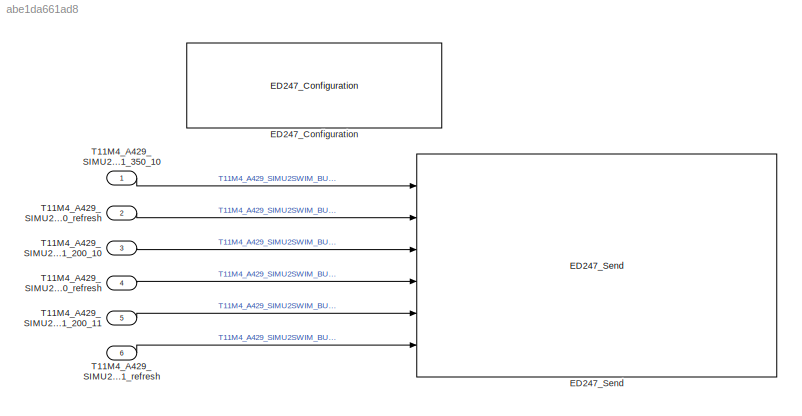
MODEL slx_abe1da661ad8
KIND model
CONFIG AbsTol = auto
CONFIG EnableMultiTasking = off
CONFIG FixedStep = auto
CONFIG MaxStep = auto
CONFIG MinStep = auto
CONFIG PreLoadFcn = ds = Simulink.SimulationData.Dataset();\nds = ds.addElement(timeseries(uint8((1:11)' + (1:4)),       (0:10)', 'Name', 'AnA429SamplingMessage'),   'Name', 'AnA429SamplingMessage');\nds = ds.addElement(timeseries(uint8((250:-1:240)' + (1:4)), (0:10)', 'Name', 'AnA429QueuingMessage'),    'Name', 'AnA429QueuingMessage');
CONFIG RelTol = 1e-3
CONFIG SampleTimeConstraint = Unconstrained
CONFIG Solver = VariableStepAuto
CONFIG SolverName = VariableStepAuto
CONFIG StartTime = 0.0
CONFIG StopTime = 10.0
WORKSPACE source: MAT-file member
WORKSPACE ED247Configuration: struct (value not decoded)
BLOCK [Reference] ED247_Configuration  REF=lib_ed247/ED247_Configuration
  Ports = []
  SourceBlock = lib_ed247/ED247_Configuration
  SourceProductName = Airbus ED247
  SourceType = Configurable block example
BLOCK [Reference] ED247_Send  REF=lib_ed247/ED247_Send
  Ports = [6]
  SourceBlock = lib_ed247/ED247_Send
  SourceProductName = Airbus ED247
  SourceType = ED247 Send
BLOCK [Inport] T11M4_A429_SIMU2SWIM_BUS_1_200_10
  IconDisplay = Port number
  OutDataTypeStr = uint8
  Port = 3
  PortDimensions = 4
  SampleTime = 0.1
BLOCK [Inport] T11M4_A429_SIMU2SWIM_BUS_1_200_10_refresh
  IconDisplay = Port number
  OutDataTypeStr = boolean
  Port = 4
BLOCK [Inport] T11M4_A429_SIMU2SWIM_BUS_1_200_11
  IconDisplay = Port number
  OutDataTypeStr = uint8
  Port = 5
  PortDimensions = 4
  SampleTime = 0.1
BLOCK [Inport] T11M4_A429_SIMU2SWIM_BUS_1_200_11_refresh
  IconDisplay = Port number
  OutDataTypeStr = boolean
  Port = 6
BLOCK [Inport] T11M4_A429_SIMU2SWIM_BUS_1_350_10
  IconDisplay = Port number
  OutDataTypeStr = uint8
  PortDimensions = 4
  SampleTime = 0.1
BLOCK [Inport] T11M4_A429_SIMU2SWIM_BUS_1_350_10_refresh
  IconDisplay = Port number
  OutDataTypeStr = boolean
  Port = 2
LINE T11M4_A429_SIMU2SWIM_BUS_1_200_10:1 -> ED247_Send:3
LINE T11M4_A429_SIMU2SWIM_BUS_1_200_10_refresh:1 -> ED247_Send:4
LINE T11M4_A429_SIMU2SWIM_BUS_1_200_11:1 -> ED247_Send:5
LINE T11M4_A429_SIMU2SWIM_BUS_1_200_11_refresh:1 -> ED247_Send:6
LINE T11M4_A429_SIMU2SWIM_BUS_1_350_10:1 -> ED247_Send:1
LINE T11M4_A429_SIMU2SWIM_BUS_1_350_10_refresh:1 -> ED247_Send:2
